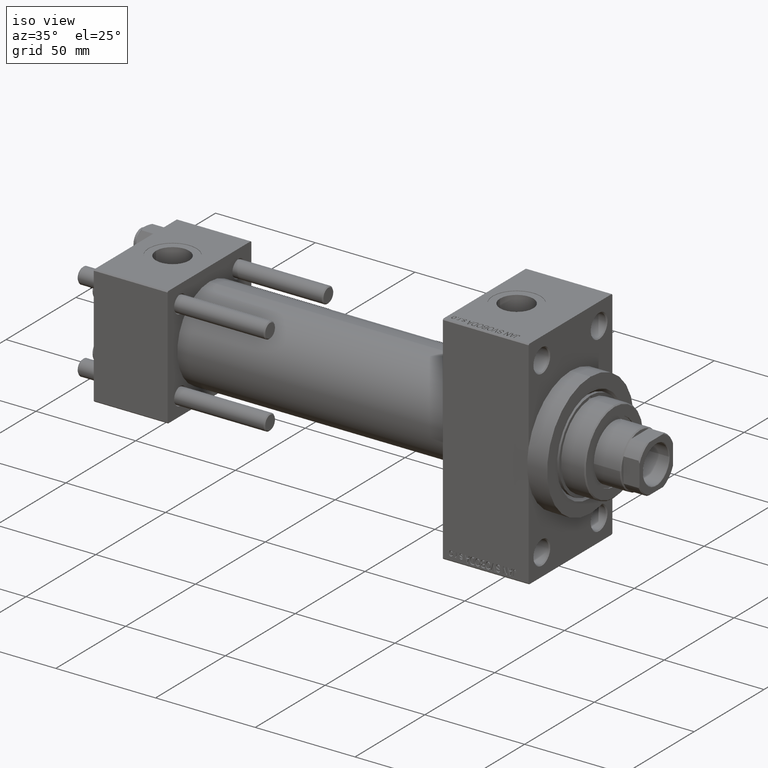
[diagram: clean part render]
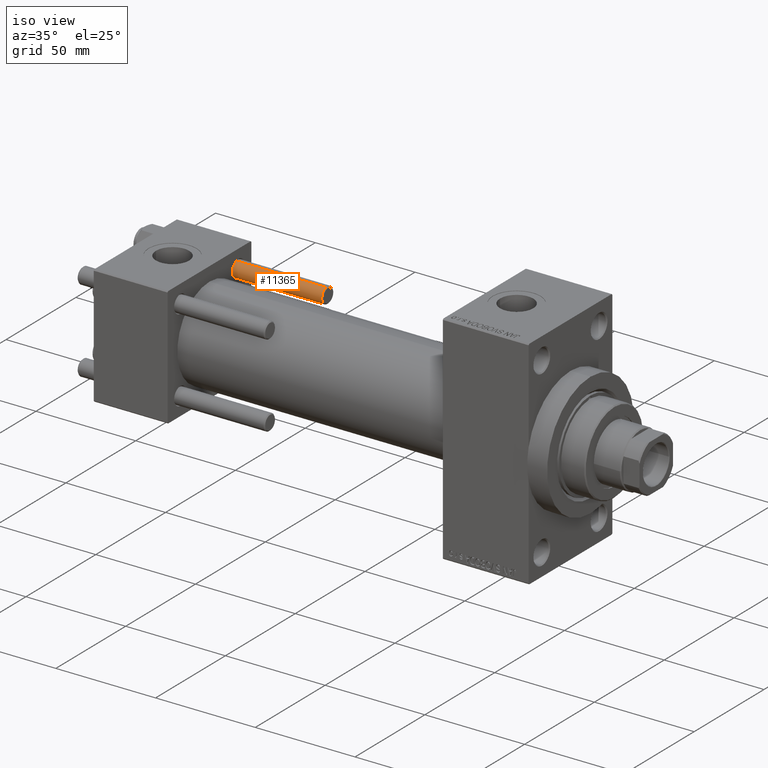
[diagram: same view with one face highlighted and labeled with its STEP entity id]
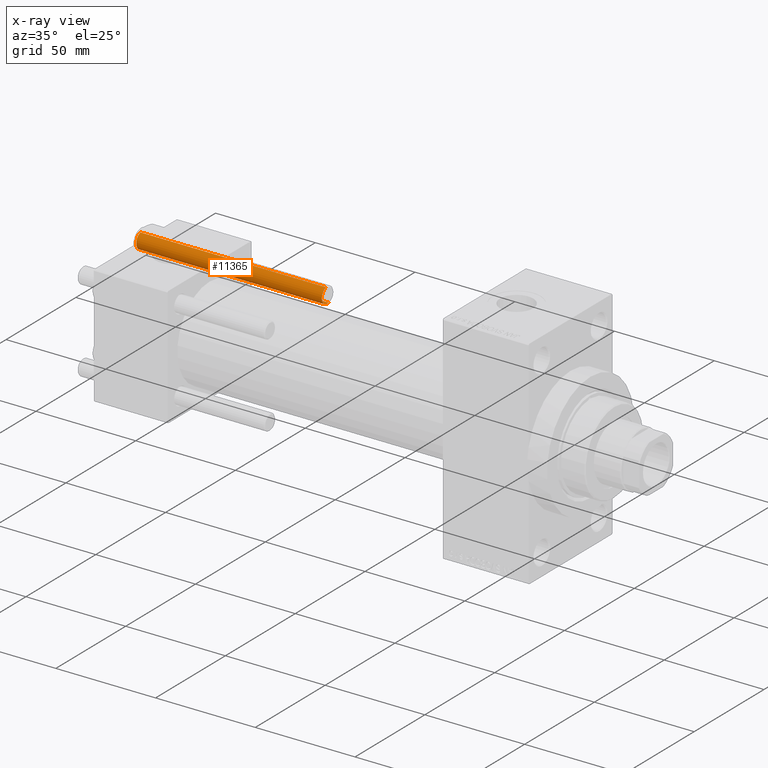
[diagram: x-ray of the same camera — body ghosted, the highlighted face saturated]
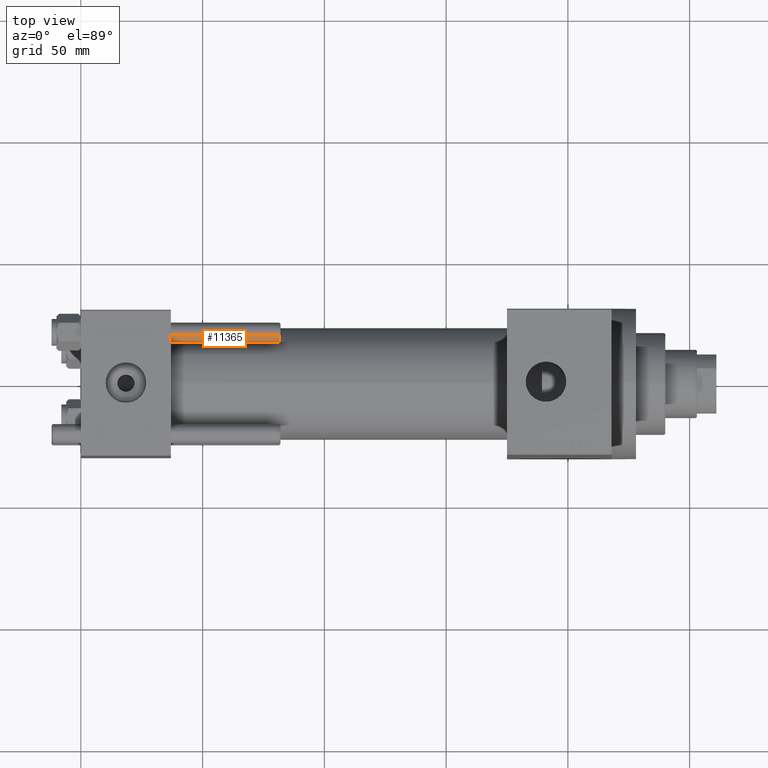
[diagram: same view with one face highlighted and labeled with its STEP entity id]
A machine part, iso view. The second image highlights one B-rep face of the part: STEP entity #11365.
The next image is the same camera in x-ray: the body ghosted, the highlighted face saturated — about 0% of this face is hidden behind the body in this view.
A second angle (top view) of the same face is appended — the face is thin or edge-on in the first view.
In plain terms, the highlighted cylindrical surface (edge-blend (fillet) strip) has radius 4 mm, axis along (-1, -0, 0).
Its self-contained STEP definition (entity closure, byte-faithful):
#69 = ORIENTED_EDGE ( 'NONE', *, *, #17463, .F. ) ;
#1534 = CARTESIAN_POINT ( 'NONE',  ( 0.000000000000000000, 0.000000000000000000, 94.00000000000000000 ) ) ;
#1871 = CARTESIAN_POINT ( 'NONE',  ( -4.000000000000000000, 0.000000000000000000, 94.00000000000000000 ) ) ;
#2907 = CIRCLE ( 'NONE', #34096, 4.000000000000000000 ) ;
#5292 = DIRECTION ( 'NONE',  ( -0.000000000000000000, -0.000000000000000000, 1.000000000000000000 ) ) ;
#6034 = LINE ( 'NONE', #1871, #41859 ) ;
#7135 = EDGE_CURVE ( 'NONE', #35977, #26950, #26116, .T. ) ;
#9756 = DIRECTION ( 'NONE',  ( -0.000000000000000000, -0.000000000000000000, -1.000000000000000000 ) ) ;
#11365 = ADVANCED_FACE ( 'NONE', ( #17568 ), #18039, .T. ) ;
#12097 = AXIS2_PLACEMENT_3D ( 'NONE', #35007, #34758, #45753 ) ;
#12924 = EDGE_LOOP ( 'NONE', ( #69, #18368, #29753, #30593 ) ) ;
#13931 = CARTESIAN_POINT ( 'NONE',  ( 4.000000000000000000, 4.898587196589412829E-16, 0.5000000000000143219 ) ) ;
#15393 = CARTESIAN_POINT ( 'NONE',  ( -4.000000000000000000, 0.000000000000000000, 93.50000000000001421 ) ) ;
#17463 = EDGE_CURVE ( 'NONE', #35977, #24339, #23889, .T. ) ;
#17568 = FACE_OUTER_BOUND ( 'NONE', #12924, .T. ) ;
#18039 = CYLINDRICAL_SURFACE ( 'NONE', #35284, 4.000000000000000000 ) ;
#18368 = ORIENTED_EDGE ( 'NONE', *, *, #7135, .T. ) ;
#21457 = CARTESIAN_POINT ( 'NONE',  ( -4.000000000000000000, 0.000000000000000000, 0.5000000000000143219 ) ) ;
#23889 = LINE ( 'NONE', #28277, #44743 ) ;
#24339 = VERTEX_POINT ( 'NONE', #13931 ) ;
#26116 = CIRCLE ( 'NONE', #12097, 4.000000000000000000 ) ;
#26763 = CARTESIAN_POINT ( 'NONE',  ( 0.000000000000000000, 0.000000000000000000, 0.5000000000000143219 ) ) ;
#26950 = VERTEX_POINT ( 'NONE', #15393 ) ;
#27626 = DIRECTION ( 'NONE',  ( -1.000000000000000000, 0.000000000000000000, 0.000000000000000000 ) ) ;
#28277 = CARTESIAN_POINT ( 'NONE',  ( 4.000000000000000000, 4.898587196589412829E-16, 94.00000000000000000 ) ) ;
#29446 = EDGE_CURVE ( 'NONE', #40352, #24339, #2907, .T. ) ;
#29753 = ORIENTED_EDGE ( 'NONE', *, *, #37550, .T. ) ;
#30593 = ORIENTED_EDGE ( 'NONE', *, *, #29446, .T. ) ;
#33824 = DIRECTION ( 'NONE',  ( 1.000000000000000000, 0.000000000000000000, 0.000000000000000000 ) ) ;
#34096 = AXIS2_PLACEMENT_3D ( 'NONE', #26763, #5292, #33824 ) ;
#34758 = DIRECTION ( 'NONE',  ( 0.000000000000000000, 0.000000000000000000, -1.000000000000000000 ) ) ;
#35007 = CARTESIAN_POINT ( 'NONE',  ( 0.000000000000000000, 0.000000000000000000, 93.50000000000001421 ) ) ;
#35284 = AXIS2_PLACEMENT_3D ( 'NONE', #1534, #36078, #27626 ) ;
#35763 = DIRECTION ( 'NONE',  ( -0.000000000000000000, -0.000000000000000000, -1.000000000000000000 ) ) ;
#35977 = VERTEX_POINT ( 'NONE', #42478 ) ;
#36078 = DIRECTION ( 'NONE',  ( -0.000000000000000000, -0.000000000000000000, -1.000000000000000000 ) ) ;
#37550 = EDGE_CURVE ( 'NONE', #26950, #40352, #6034, .T. ) ;
#40352 = VERTEX_POINT ( 'NONE', #21457 ) ;
#41859 = VECTOR ( 'NONE', #35763, 1000.000000000000000 ) ;
#42478 = CARTESIAN_POINT ( 'NONE',  ( 4.000000000000000000, 4.898587196589412829E-16, 93.50000000000001421 ) ) ;
#44743 = VECTOR ( 'NONE', #9756, 1000.000000000000000 ) ;
#45753 = DIRECTION ( 'NONE',  ( 1.000000000000000000, 0.000000000000000000, 0.000000000000000000 ) ) ;